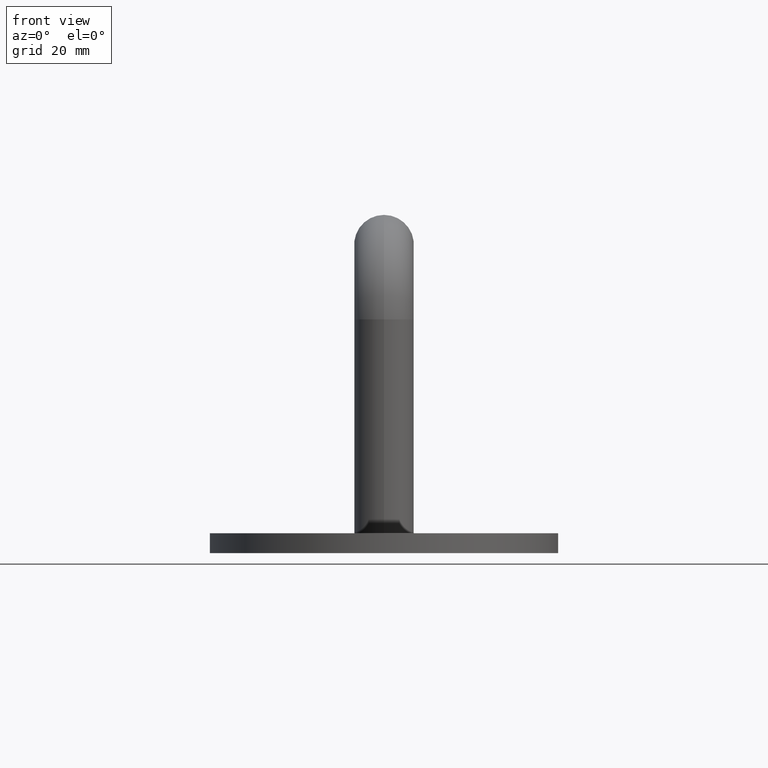
[diagram: clean part render]
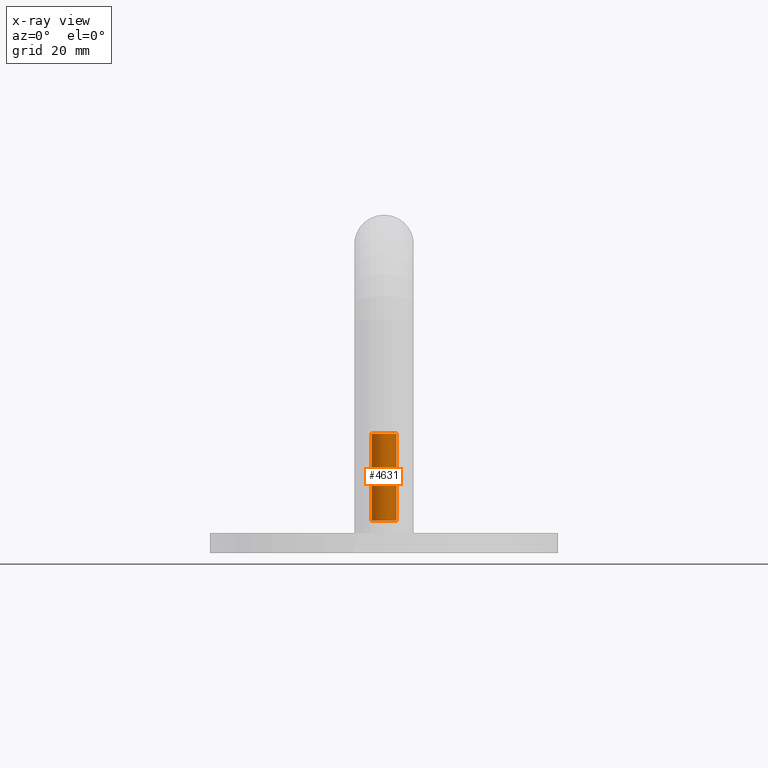
[diagram: x-ray — body ghosted, one internal face saturated and labeled with its STEP entity id]
A machine part, front view, then the same camera in x-ray: the body is ghosted and one INTERNAL B-rep face — a face not visible from any outside direction — is saturated and labeled: STEP entity #4631.
In plain terms, the highlighted cylindrical surface (edge-blend (fillet) strip) has radius 2.5 mm, axis along (-0, -0, -1).
Its self-contained STEP definition (entity closure, byte-faithful):
#484 = AXIS2_PLACEMENT_3D ( 'NONE', #21826, #935, #7708 ) ;
#935 = DIRECTION ( 'NONE',  ( -0.000000000000000000, -0.000000000000000000, -1.000000000000000000 ) ) ;
#973 = DIRECTION ( 'NONE',  ( -0.000000000000000000, -0.000000000000000000, -1.000000000000000000 ) ) ;
#1149 = VECTOR ( 'NONE', #10165, 1000.000000000000000 ) ;
#1236 = CIRCLE ( 'NONE', #15905, 2.499999999999996003 ) ;
#1434 = CARTESIAN_POINT ( 'NONE',  ( 2.499999999999996003, 3.061616997868378211E-16, 0.000000000000000000 ) ) ;
#1582 = DIRECTION ( 'NONE',  ( 0.000000000000000000, 0.000000000000000000, 1.000000000000000000 ) ) ;
#1887 = EDGE_CURVE ( 'NONE', #19093, #2514, #20222, .T. ) ;
#2021 = EDGE_CURVE ( 'NONE', #9456, #20384, #8513, .T. ) ;
#2455 = FACE_OUTER_BOUND ( 'NONE', #20890, .T. ) ;
#2514 = VERTEX_POINT ( 'NONE', #21695 ) ;
#3259 = CIRCLE ( 'NONE', #484, 2.499999999999995115 ) ;
#4631 = ADVANCED_FACE ( 'NONE', ( #2455 ), #11710, .F. ) ;
#5365 = CARTESIAN_POINT ( 'NONE',  ( -2.499999999999995115, 0.000000000000000000, 20.00000000000000000 ) ) ;
#5398 = EDGE_CURVE ( 'NONE', #9456, #19093, #3259, .T. ) ;
#5841 = DIRECTION ( 'NONE',  ( -1.000000000000000000, 0.000000000000000000, 0.000000000000000000 ) ) ;
#7708 = DIRECTION ( 'NONE',  ( -1.000000000000000000, 0.000000000000000000, 0.000000000000000000 ) ) ;
#7972 = CARTESIAN_POINT ( 'NONE',  ( -2.499999999999996003, 0.000000000000000000, 0.000000000000000000 ) ) ;
#8513 = LINE ( 'NONE', #1434, #1149 ) ;
#9425 = CARTESIAN_POINT ( 'NONE',  ( 2.499999999999996003, 4.592425496802572000E-16, 2.500000000000001776 ) ) ;
#9456 = VERTEX_POINT ( 'NONE', #17764 ) ;
#10165 = DIRECTION ( 'NONE',  ( -0.000000000000000000, -0.000000000000000000, -1.000000000000000000 ) ) ;
#11710 = CYLINDRICAL_SURFACE ( 'NONE', #14606, 2.499999999999996003 ) ;
#12563 = ORIENTED_EDGE ( 'NONE', *, *, #5398, .F. ) ;
#14606 = AXIS2_PLACEMENT_3D ( 'NONE', #18093, #21442, #5841 ) ;
#15580 = EDGE_CURVE ( 'NONE', #2514, #20384, #1236, .T. ) ;
#15905 = AXIS2_PLACEMENT_3D ( 'NONE', #18751, #1582, #22476 ) ;
#16312 = ORIENTED_EDGE ( 'NONE', *, *, #1887, .F. ) ;
#17764 = CARTESIAN_POINT ( 'NONE',  ( 2.499999999999995115, 3.061616997868377718E-16, 20.00000000000000000 ) ) ;
#18093 = CARTESIAN_POINT ( 'NONE',  ( 0.000000000000000000, 0.000000000000000000, 0.000000000000000000 ) ) ;
#18751 = CARTESIAN_POINT ( 'NONE',  ( 0.000000000000000000, 0.000000000000000000, 2.500000000000001776 ) ) ;
#19093 = VERTEX_POINT ( 'NONE', #5365 ) ;
#20222 = LINE ( 'NONE', #7972, #22115 ) ;
#20384 = VERTEX_POINT ( 'NONE', #9425 ) ;
#20890 = EDGE_LOOP ( 'NONE', ( #12563, #21209, #22043, #16312 ) ) ;
#21209 = ORIENTED_EDGE ( 'NONE', *, *, #2021, .T. ) ;
#21442 = DIRECTION ( 'NONE',  ( -0.000000000000000000, -0.000000000000000000, -1.000000000000000000 ) ) ;
#21695 = CARTESIAN_POINT ( 'NONE',  ( -2.499999999999996003, 0.000000000000000000, 2.500000000000001776 ) ) ;
#21826 = CARTESIAN_POINT ( 'NONE',  ( 0.000000000000000000, 0.000000000000000000, 20.00000000000000000 ) ) ;
#22043 = ORIENTED_EDGE ( 'NONE', *, *, #15580, .F. ) ;
#22115 = VECTOR ( 'NONE', #973, 1000.000000000000000 ) ;
#22476 = DIRECTION ( 'NONE',  ( -1.000000000000000000, 0.000000000000000000, 0.000000000000000000 ) ) ;